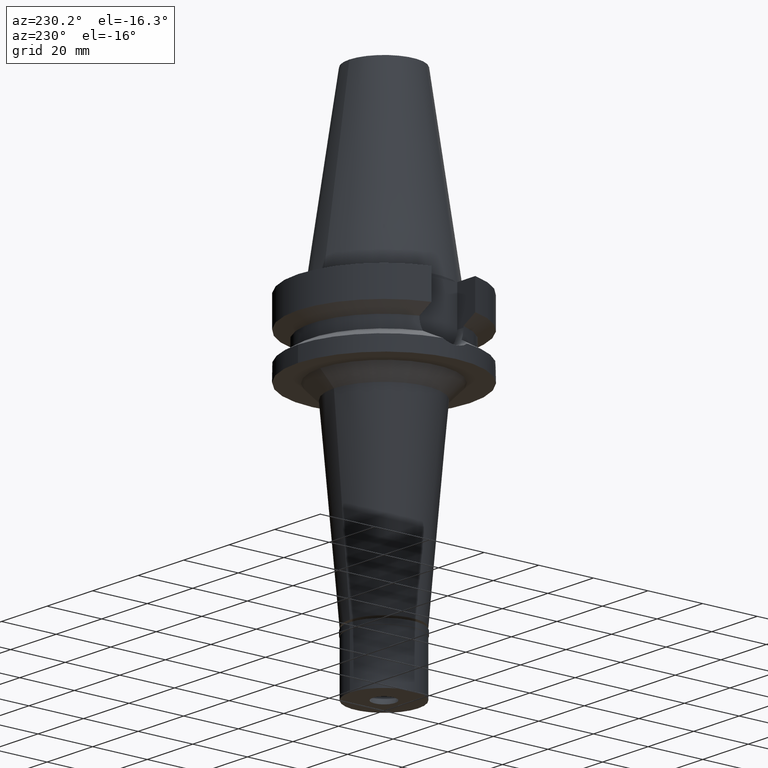
[diagram: clean part render]
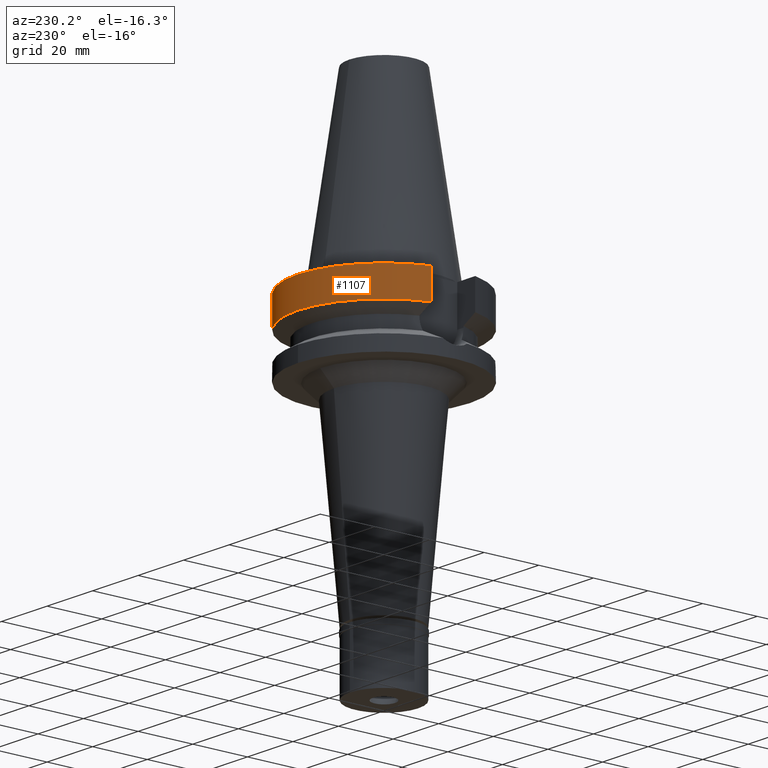
[diagram: same view with one face highlighted and labeled with its STEP entity id]
A machine part, auxiliary view. The second image highlights one B-rep face of the part: STEP entity #1107.
In plain terms, the highlighted cylindrical surface (partial cylindrical patch) has radius 31.5 mm, axis along (0, 0, -1).
Its self-contained STEP definition (entity closure, byte-faithful):
#23 = DIRECTION ( 'NONE',  ( 0.0000000000000000000, 1.000000000000000000, 0.0000000000000000000 ) ) ;
#78 = AXIS2_PLACEMENT_3D ( 'NONE', #266, #1051, #23 ) ;
#266 = CARTESIAN_POINT ( 'NONE',  ( 0.0000000000000000000, 1.065333950388000029E-14, -11.56550565266999975 ) ) ;
#395 = DIRECTION ( 'NONE',  ( -1.806845251686990560E-08, 6.835515272663962924E-08, 0.9999999999999974465 ) ) ;
#485 = VERTEX_POINT ( 'NONE', #1304 ) ;
#486 = CARTESIAN_POINT ( 'NONE',  ( 30.45402272279000044, 8.050000000000000711, -1.000000000000000000 ) ) ;
#699 = LINE ( 'NONE', #2633, #2247 ) ;
#822 = CIRCLE ( 'NONE', #2394, 31.50000000000000000 ) ;
#901 = CYLINDRICAL_SURFACE ( 'NONE', #1941, 31.50000000000000000 ) ;
#987 = EDGE_CURVE ( 'NONE', #1348, #2685, #1136, .T. ) ;
#1051 = DIRECTION ( 'NONE',  ( 0.0000000000000000000, 0.0000000000000000000, 1.000000000000000000 ) ) ;
#1107 = ADVANCED_FACE ( 'NONE', ( #3088 ), #901, .T. ) ;
#1117 = EDGE_CURVE ( 'NONE', #2722, #485, #699, .T. ) ;
#1121 = EDGE_LOOP ( 'NONE', ( #2742, #1991, #2125, #1854 ) ) ;
#1136 = LINE ( 'NONE', #2769, #2797 ) ;
#1182 = DIRECTION ( 'NONE',  ( 1.036713578030017662E-07, 3.921994520926068553E-07, -0.9999999999999177325 ) ) ;
#1304 = CARTESIAN_POINT ( 'NONE',  ( -30.45402162745000041, 8.050004143770999931, -11.56546832735000052 ) ) ;
#1348 = VERTEX_POINT ( 'NONE', #1723 ) ;
#1409 = CARTESIAN_POINT ( 'NONE',  ( 0.0000000000000000000, 2.135294158992999721E-14, 74.35999999999999943 ) ) ;
#1441 = CARTESIAN_POINT ( 'NONE',  ( -30.45402272279000044, 8.050000000000000711, -1.000000000000000000 ) ) ;
#1538 = CIRCLE ( 'NONE', #78, 31.50000000000000000 ) ;
#1546 = EDGE_CURVE ( 'NONE', #2722, #2685, #822, .T. ) ;
#1635 = CARTESIAN_POINT ( 'NONE',  ( 0.0000000000000000000, 2.135294158992999721E-14, -1.000000000000000000 ) ) ;
#1723 = CARTESIAN_POINT ( 'NONE',  ( 30.45402291369000025, 8.049999277793000729, -11.56551215744000061 ) ) ;
#1854 = ORIENTED_EDGE ( 'NONE', *, *, #2328, .T. ) ;
#1889 = DIRECTION ( 'NONE',  ( 0.0000000000000000000, 1.000000000000000000, 0.0000000000000000000 ) ) ;
#1895 = DIRECTION ( 'NONE',  ( 0.0000000000000000000, -1.000000000000000000, 0.0000000000000000000 ) ) ;
#1941 = AXIS2_PLACEMENT_3D ( 'NONE', #1409, #2204, #1895 ) ;
#1991 = ORIENTED_EDGE ( 'NONE', *, *, #1546, .T. ) ;
#2125 = ORIENTED_EDGE ( 'NONE', *, *, #987, .F. ) ;
#2204 = DIRECTION ( 'NONE',  ( 0.0000000000000000000, 0.0000000000000000000, -1.000000000000000000 ) ) ;
#2247 = VECTOR ( 'NONE', #1182, 1000.000000000000114 ) ;
#2328 = EDGE_CURVE ( 'NONE', #1348, #485, #1538, .T. ) ;
#2394 = AXIS2_PLACEMENT_3D ( 'NONE', #1635, #2865, #1889 ) ;
#2633 = CARTESIAN_POINT ( 'NONE',  ( -30.45402272279000044, 8.050000000000000711, -1.000000000000000000 ) ) ;
#2685 = VERTEX_POINT ( 'NONE', #486 ) ;
#2722 = VERTEX_POINT ( 'NONE', #1441 ) ;
#2742 = ORIENTED_EDGE ( 'NONE', *, *, #1117, .F. ) ;
#2769 = CARTESIAN_POINT ( 'NONE',  ( 30.45402291369000025, 8.049999277793000729, -11.56551215744000061 ) ) ;
#2797 = VECTOR ( 'NONE', #395, 1000.000000000000114 ) ;
#2865 = DIRECTION ( 'NONE',  ( 0.0000000000000000000, 0.0000000000000000000, -1.000000000000000000 ) ) ;
#3088 = FACE_OUTER_BOUND ( 'NONE', #1121, .T. ) ;